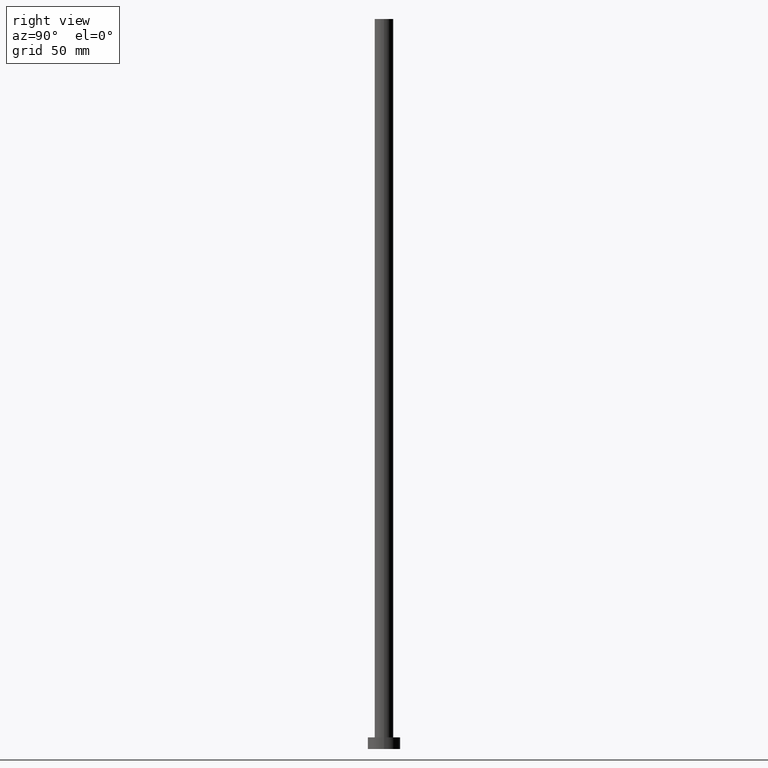
[diagram: clean part render]
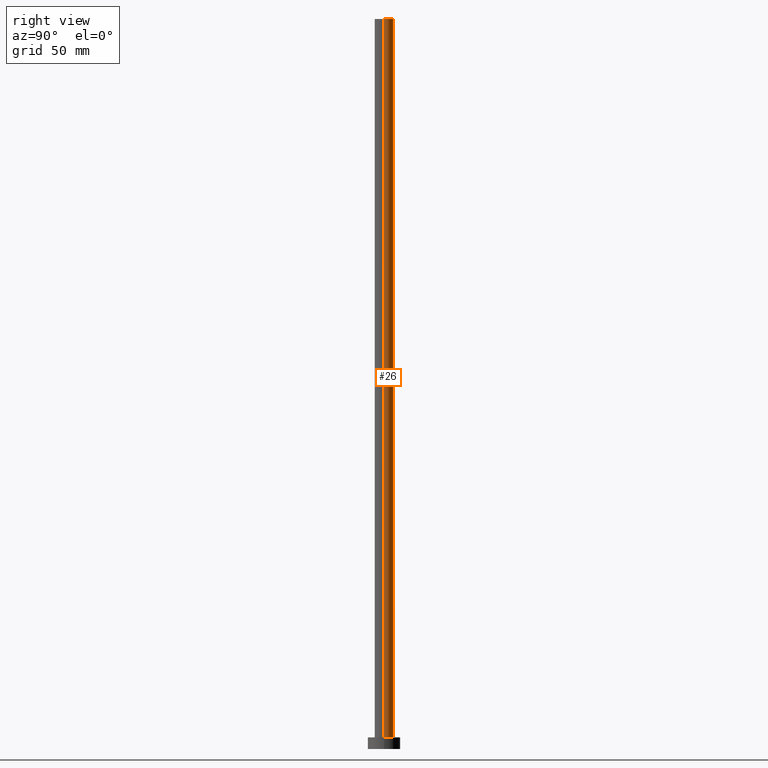
[diagram: same view with one face highlighted and labeled with its STEP entity id]
A machine part, right view. The second image highlights one B-rep face of the part: STEP entity #26.
In plain terms, the highlighted cylindrical surface (edge-blend (fillet) strip) has radius 4 mm, axis along (-0, -0, -1).
Its self-contained STEP definition (entity closure, byte-faithful):
#5 = LINE ( 'NONE', #134, #45 ) ;
#18 = DIRECTION ( 'NONE',  ( -1.000000000000000000, 0.000000000000000000, 0.000000000000000000 ) ) ;
#26 = ADVANCED_FACE ( 'NONE', ( #39 ), #144, .T. ) ;
#31 = ORIENTED_EDGE ( 'NONE', *, *, #148, .T. ) ;
#39 = FACE_OUTER_BOUND ( 'NONE', #63, .T. ) ;
#41 = CARTESIAN_POINT ( 'NONE',  ( 0.000000000000000000, 0.000000000000000000, 315.0000000000000000 ) ) ;
#42 = CARTESIAN_POINT ( 'NONE',  ( -4.000000000000000000, 0.000000000000000000, 5.000000000000000000 ) ) ;
#45 = VECTOR ( 'NONE', #70, 1000.000000000000000 ) ;
#49 = DIRECTION ( 'NONE',  ( 0.000000000000000000, 0.000000000000000000, 1.000000000000000000 ) ) ;
#54 = EDGE_CURVE ( 'NONE', #215, #180, #244, .T. ) ;
#63 = EDGE_LOOP ( 'NONE', ( #161, #31, #251, #159 ) ) ;
#70 = DIRECTION ( 'NONE',  ( -0.000000000000000000, -0.000000000000000000, -1.000000000000000000 ) ) ;
#71 = CARTESIAN_POINT ( 'NONE',  ( -4.000000000000000000, 0.000000000000000000, 315.0000000000000000 ) ) ;
#83 = DIRECTION ( 'NONE',  ( -0.000000000000000000, -0.000000000000000000, -1.000000000000000000 ) ) ;
#86 = CIRCLE ( 'NONE', #249, 4.000000000000000000 ) ;
#93 = DIRECTION ( 'NONE',  ( -0.000000000000000000, -0.000000000000000000, -1.000000000000000000 ) ) ;
#94 = DIRECTION ( 'NONE',  ( 1.000000000000000000, 0.000000000000000000, 0.000000000000000000 ) ) ;
#108 = CIRCLE ( 'NONE', #114, 4.000000000000000000 ) ;
#110 = EDGE_CURVE ( 'NONE', #178, #180, #86, .T. ) ;
#114 = AXIS2_PLACEMENT_3D ( 'NONE', #118, #252, #214 ) ;
#118 = CARTESIAN_POINT ( 'NONE',  ( 0.000000000000000000, 0.000000000000000000, 315.0000000000000000 ) ) ;
#127 = CARTESIAN_POINT ( 'NONE',  ( -4.000000000000000000, 0.000000000000000000, 315.0000000000000000 ) ) ;
#134 = CARTESIAN_POINT ( 'NONE',  ( 4.000000000000000000, 4.898587196589412829E-16, 315.0000000000000000 ) ) ;
#135 = CARTESIAN_POINT ( 'NONE',  ( 4.000000000000000000, 4.898587196589412829E-16, 5.000000000000000000 ) ) ;
#141 = VERTEX_POINT ( 'NONE', #192 ) ;
#144 = CYLINDRICAL_SURFACE ( 'NONE', #151, 4.000000000000000000 ) ;
#148 = EDGE_CURVE ( 'NONE', #141, #178, #5, .T. ) ;
#151 = AXIS2_PLACEMENT_3D ( 'NONE', #41, #83, #18 ) ;
#159 = ORIENTED_EDGE ( 'NONE', *, *, #54, .F. ) ;
#161 = ORIENTED_EDGE ( 'NONE', *, *, #182, .F. ) ;
#178 = VERTEX_POINT ( 'NONE', #135 ) ;
#180 = VERTEX_POINT ( 'NONE', #42 ) ;
#182 = EDGE_CURVE ( 'NONE', #141, #215, #108, .T. ) ;
#192 = CARTESIAN_POINT ( 'NONE',  ( 4.000000000000000000, 4.898587196589412829E-16, 315.0000000000000000 ) ) ;
#203 = VECTOR ( 'NONE', #93, 1000.000000000000000 ) ;
#214 = DIRECTION ( 'NONE',  ( 1.000000000000000000, 0.000000000000000000, 0.000000000000000000 ) ) ;
#215 = VERTEX_POINT ( 'NONE', #127 ) ;
#226 = CARTESIAN_POINT ( 'NONE',  ( 0.000000000000000000, 0.000000000000000000, 5.000000000000000000 ) ) ;
#244 = LINE ( 'NONE', #71, #203 ) ;
#249 = AXIS2_PLACEMENT_3D ( 'NONE', #226, #49, #94 ) ;
#251 = ORIENTED_EDGE ( 'NONE', *, *, #110, .T. ) ;
#252 = DIRECTION ( 'NONE',  ( 0.000000000000000000, 0.000000000000000000, 1.000000000000000000 ) ) ;